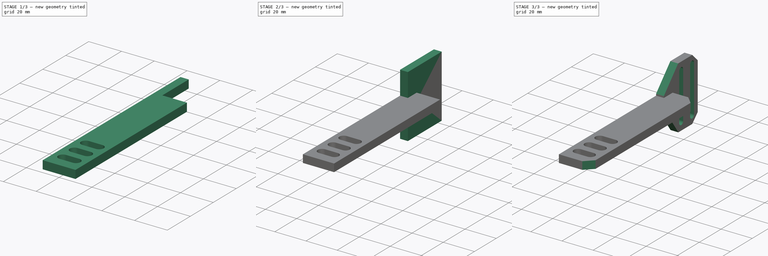
[diagram: build sequence overview — one tinted view per stage of 3, left to right]
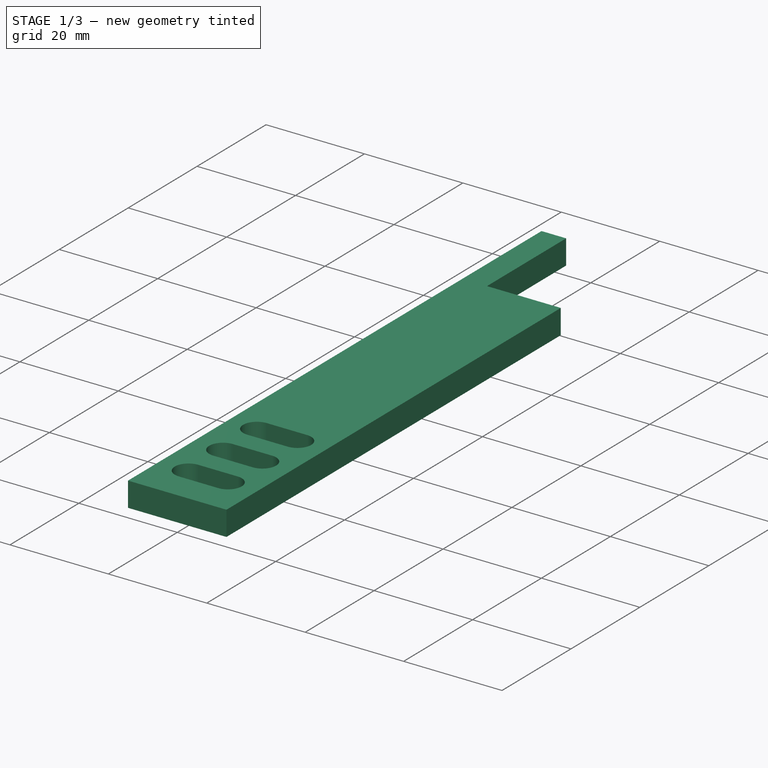
[diagram: stage 1 of 3 — iso view after this stage's code; geometry added in this stage tinted green]
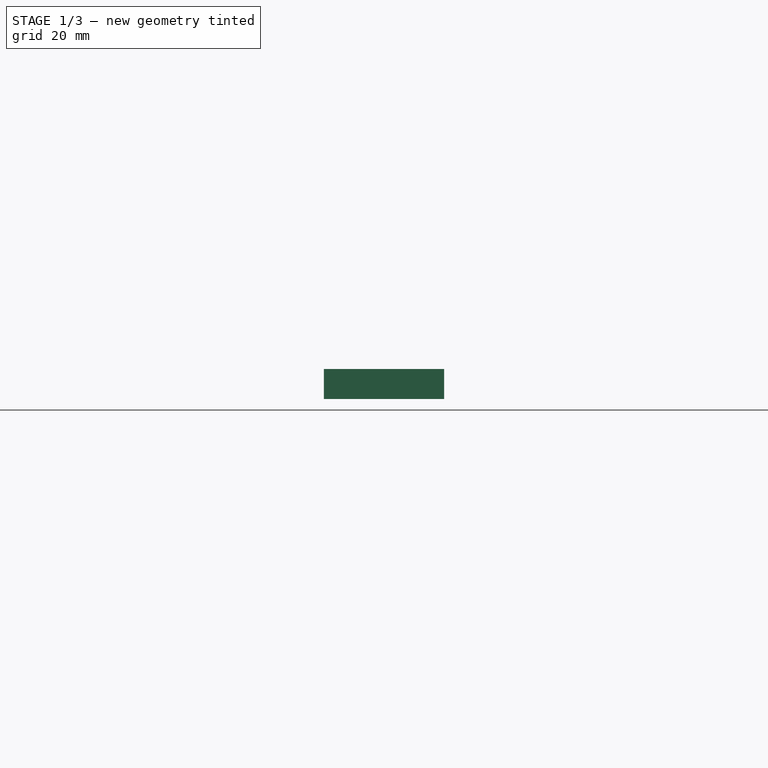
[diagram: stage 1 of 3 — front view after this stage's code; geometry added in this stage tinted green]
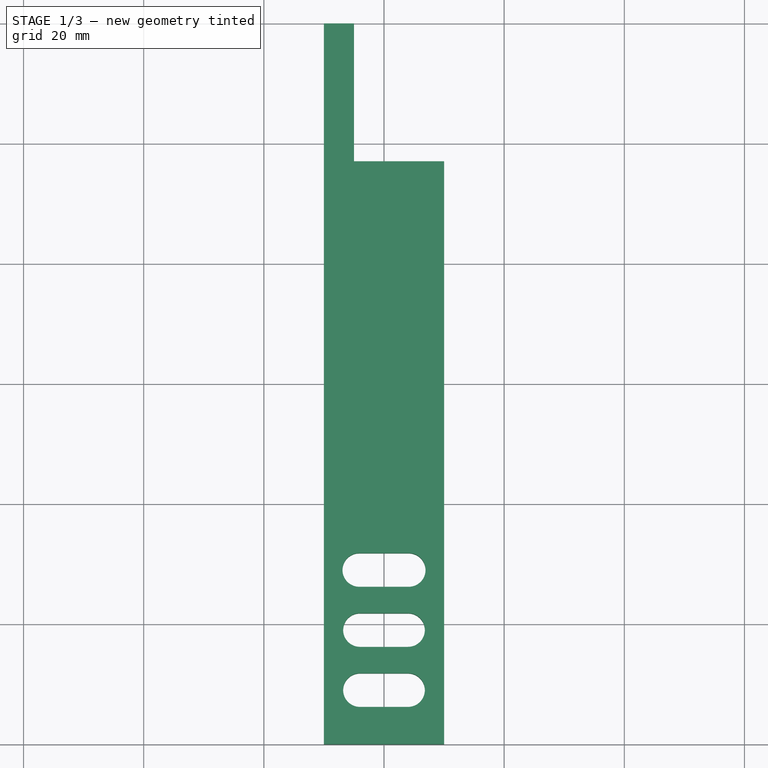
[diagram: stage 1 of 3 — top view after this stage's code; geometry added in this stage tinted green]
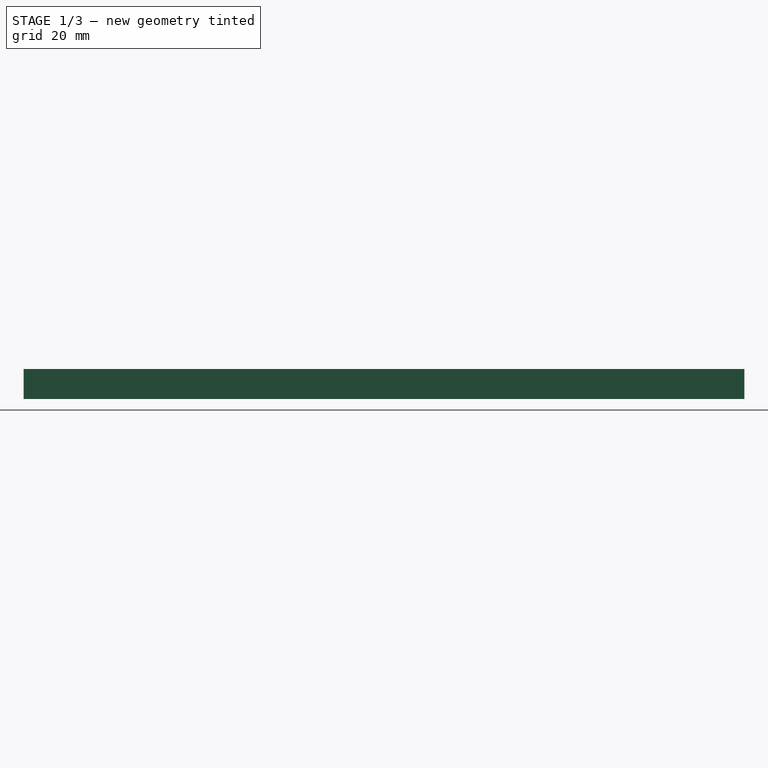
[diagram: stage 1 of 3 — right view after this stage's code; geometry added in this stage tinted green]
FCSTD DOCUMENT  (FreeCAD 0.16R6698 (Git))
Label: pnp z limit bracket
License: All rights reserved
LicenseURL: http://en.wikipedia.org/wiki/All_rights_reserved
objects: Sketcher::SketchObject×4, PartDesign::Pad×2, PartDesign::Pocket×2, PartDesign::Chamfer×1
note: 13 computed .brp shape members not serialized (recipe doc carries the construction recipe); baked Part::Feature solids carry a one-line shape summary decoded from their .brp

FEATURE [Sketcher::SketchObject] Sketch
  sketch-geometry (4):
    g0: LineSegment StartX=-10 StartY=120 StartZ=0 EndX=10 EndY=120 EndZ=0
    g1: LineSegment StartX=10 StartY=120 StartZ=0 EndX=10 EndY=0 EndZ=0
    g2: LineSegment StartX=10 StartY=0 StartZ=0 EndX=-10 EndY=0 EndZ=0
    g3: LineSegment StartX=-10 StartY=0 StartZ=0 EndX=-10 EndY=120 EndZ=0
  constraints (12):
    c: Coincident(g0,g1)
    c: Coincident(g1,g2)
    c: Coincident(g2,g3)
    c: Coincident(g3,g0)
    c: Horizontal(g0)
    c: Horizontal(g2)
    c: Vertical(g1)
    c: Vertical(g3)
    c: Symmetric(g0,g0,g-2)
    c: PointOnObject(g1,g-1)
    c: DistanceY(g1,g1) = 120
    c: DistanceX(g0,g0) = 20
FEATURE [PartDesign::Pad] Pad
  Length = 5
  Length2 = 100
  Sketch = -> Sketch
  Type = 0
FEATURE [Sketcher::SketchObject] Sketch001
  Placement = pos=(0,0,5) rot=(0,0,1;0rad)
  Support = -> Pad [Face6]
  sketch-geometry (16):
    g0: ArcOfCircle CenterX=-4 CenterY=9 CenterZ=0 NormalX=0 NormalY=0 NormalZ=1 Radius=2.8 StartAngle=1.5708 EndAngle=4.71239
    g1: ArcOfCircle CenterX=4 CenterY=9 CenterZ=0 NormalX=0 NormalY=0 NormalZ=1 Radius=2.8 StartAngle=4.71239 EndAngle=7.85398
    g2: LineSegment StartX=-4 StartY=6.2 StartZ=0 EndX=4 EndY=6.2 EndZ=0
    g3: LineSegment StartX=-4 StartY=11.8 StartZ=0 EndX=4 EndY=11.8 EndZ=0
    g4: ArcOfCircle CenterX=-4 CenterY=19 CenterZ=0 NormalX=0 NormalY=0 NormalZ=1 Radius=2.8 StartAngle=1.5708 EndAngle=4.71239
    g5: ArcOfCircle CenterX=4 CenterY=19 CenterZ=0 NormalX=0 NormalY=0 NormalZ=1 Radius=2.8 StartAngle=4.71239 EndAngle=7.85398
    g6: LineSegment StartX=-4 StartY=16.2 StartZ=0 EndX=4 EndY=16.2 EndZ=0
    g7: LineSegment StartX=-4 StartY=21.8 StartZ=0 EndX=4 EndY=21.8 EndZ=0
    g8: LineSegment StartX=-5 StartY=120.032 StartZ=0 EndX=10.636 EndY=120.032 EndZ=0
    g9: LineSegment StartX=10.636 StartY=120.032 StartZ=0 EndX=10.636 EndY=97.0322 EndZ=0
    g10: LineSegment StartX=10.636 StartY=97.0322 StartZ=0 EndX=-5 EndY=97.0322 EndZ=0
    g11: LineSegment StartX=-5 StartY=97.0322 StartZ=0 EndX=-5 EndY=120.032 EndZ=0
    g12: ArcOfCircle CenterX=-4.11305 CenterY=29 CenterZ=0 NormalX=0 NormalY=0 NormalZ=1 Radius=2.8 StartAngle=1.5708 EndAngle=4.71239
    g13: ArcOfCircle CenterX=4.11305 CenterY=29 CenterZ=0 NormalX=0 NormalY=0 NormalZ=1 Radius=2.8 StartAngle=4.71239 EndAngle=7.85398
    g14: LineSegment StartX=-4.11305 StartY=26.2 StartZ=0 EndX=4.11305 EndY=26.2 EndZ=0
    g15: LineSegment StartX=-4.11305 StartY=31.8 StartZ=0 EndX=4.11305 EndY=31.8 EndZ=0
  constraints (37):
    c: Tangent(g0,g3) = 1.5708
    c: Tangent(g0,g2) = -1.5708
    c: Tangent(g2,g1) = -1.5708
    c: Tangent(g3,g1) = 1.5708
    c: Horizontal(g2)
    c: Equal(g0,g1)
    c: Symmetric(g0,g1,g-2)
    c: Tangent(g4,g7) = 1.5708
    c: Tangent(g4,g6) = -1.5708
    c: Tangent(g6,g5) = -1.5708
    c: Tangent(g7,g5) = 1.5708
    c: Horizontal(g6)
    c: Equal(g4,g5)
    c: Symmetric(g5,g4,g-2)
    c: Radius(g0) = 2.8
    c: Equal(g0,g4)
    c: DistanceX(g4,g-1) = 4
    c: DistanceX(g0,g-1) = 4
    c: Coincident(g8,g9)
    c: Coincident(g9,g10)
    c: Coincident(g10,g11)
    c: Coincident(g11,g8)
    c: Horizontal(g8)
    c: Horizontal(g10)
    c: Vertical(g9)
    c: Vertical(g11)
    c: DistanceY(g9,g9) = 23
    c: Tangent(g12,g15) = 1.5708
    c: Tangent(g12,g14) = -1.5708
    c: Tangent(g14,g13) = -1.5708
    c: Tangent(g15,g13) = 1.5708
    c: Horizontal(g14)
    c: Equal(g12,g13)
    c: Symmetric(g13,g12,g-2)
    c: Radius(g12) = 2.8
    c: DistanceY(g4,g12) = 10
    c: DistanceY(g0,g4) = 10
FEATURE [PartDesign::Pocket] Pocket
  Length = 5
  Sketch = -> Sketch001
  Type = 1
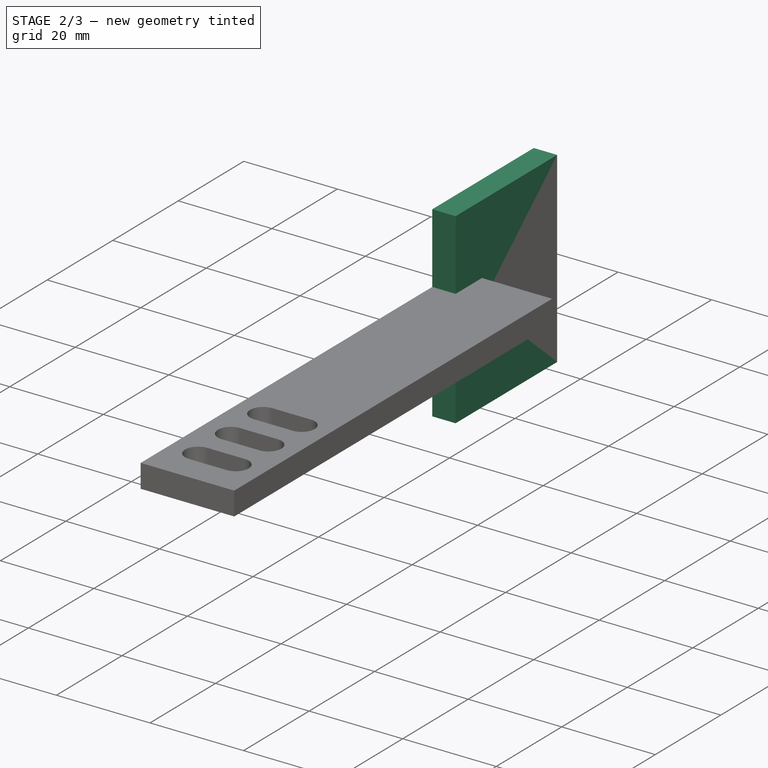
[diagram: stage 2 of 3 — iso view after this stage's code; geometry added in this stage tinted green]
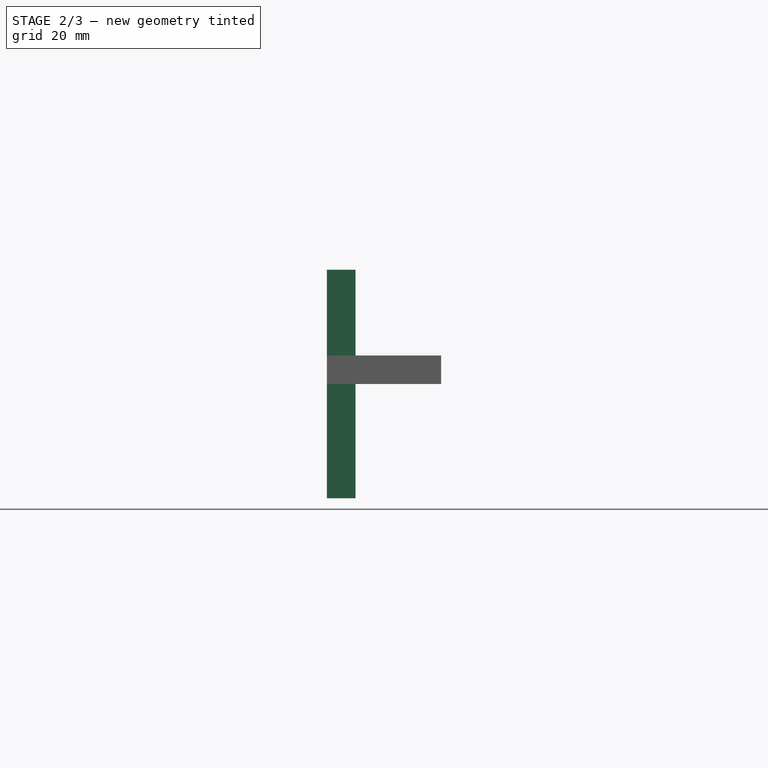
[diagram: stage 2 of 3 — front view after this stage's code; geometry added in this stage tinted green]
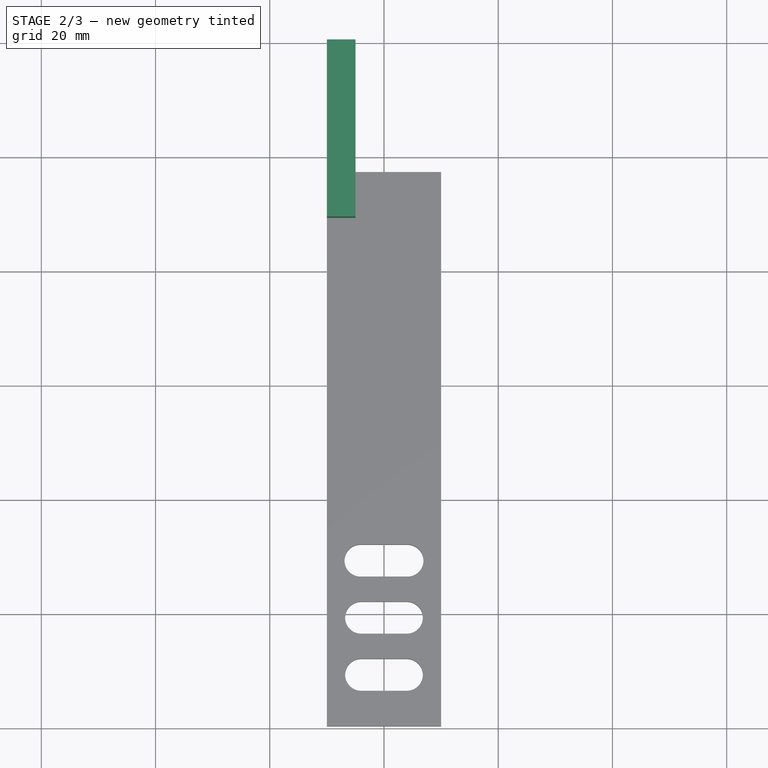
[diagram: stage 2 of 3 — top view after this stage's code; geometry added in this stage tinted green]
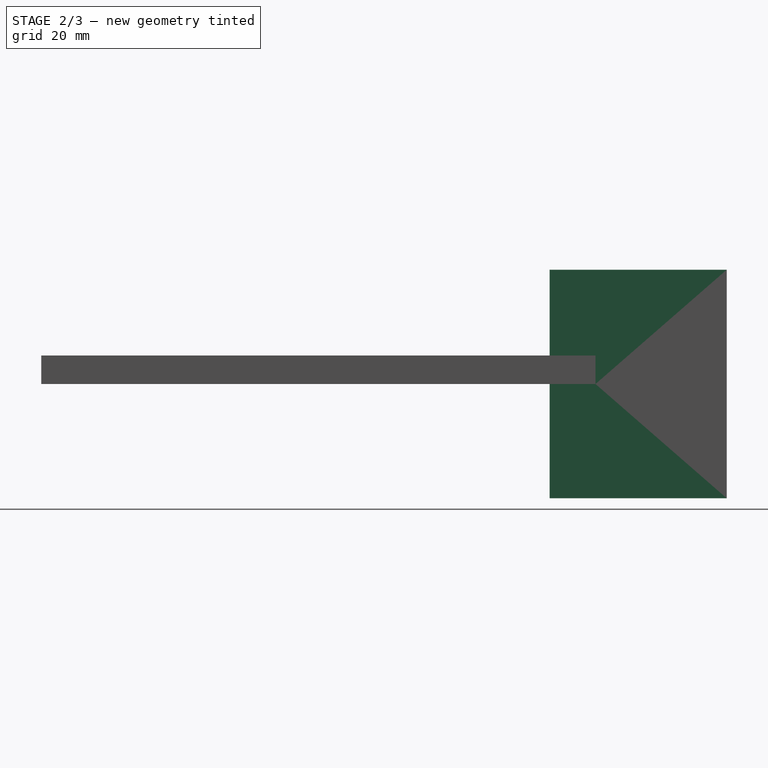
[diagram: stage 2 of 3 — right view after this stage's code; geometry added in this stage tinted green]
FEATURE [Sketcher::SketchObject] Sketch002
  Placement = pos=(0,0,5) rot=(0,0,1;0rad)
  Support = -> Pocket [Face4]
  sketch-geometry (4):
    g0: LineSegment StartX=-10 StartY=120 StartZ=0 EndX=-5 EndY=120 EndZ=0
    g1: LineSegment StartX=-5 StartY=120 StartZ=0 EndX=-5 EndY=89 EndZ=0
    g2: LineSegment StartX=-5 StartY=89 StartZ=0 EndX=-10 EndY=89 EndZ=0
    g3: LineSegment StartX=-10 StartY=89 StartZ=0 EndX=-10 EndY=120 EndZ=0
  constraints (8):
    c: Coincident(g0,g1)
    c: Coincident(g1,g2)
    c: Coincident(g2,g3)
    c: Coincident(g3,g0)
    c: Horizontal(g0)
    c: Horizontal(g2)
    c: Vertical(g1)
    c: Vertical(g3)
FEATURE [PartDesign::Pad] Pad001
  Length = 15
  Length2 = 25
  Sketch = -> Sketch002
  Type = 4
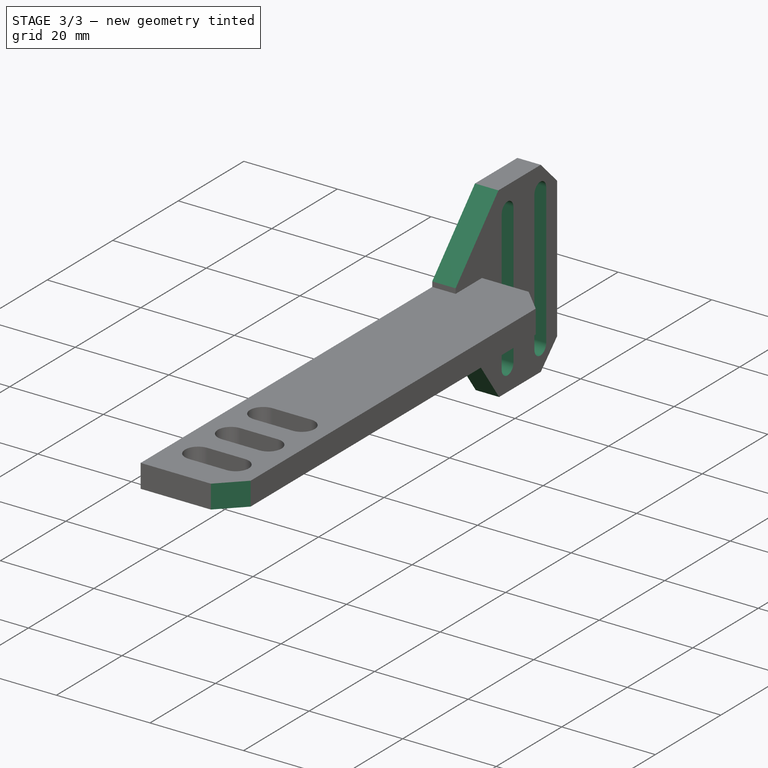
[diagram: stage 3 of 3 — iso view after this stage's code; geometry added in this stage tinted green]
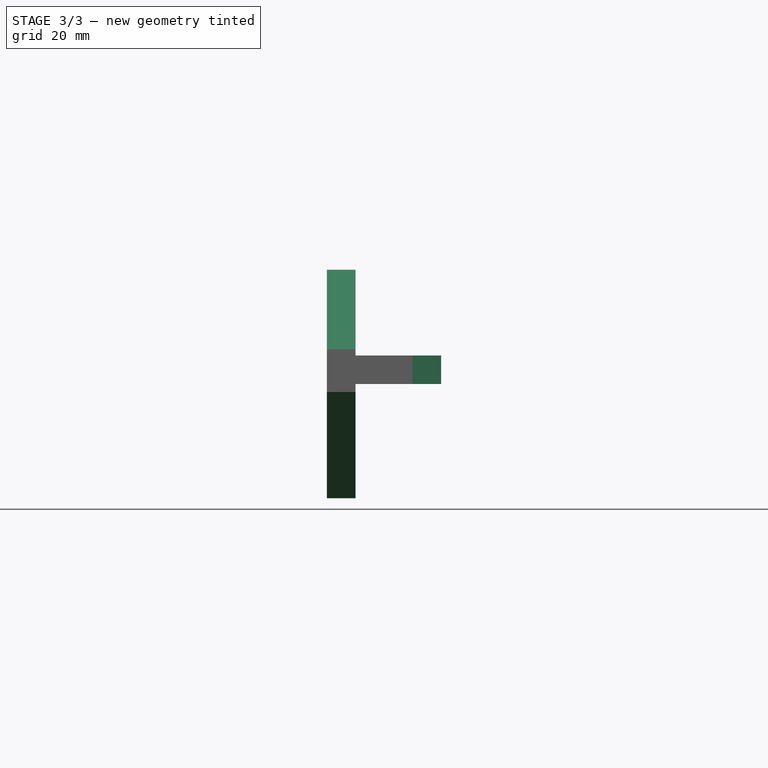
[diagram: stage 3 of 3 — front view after this stage's code; geometry added in this stage tinted green]
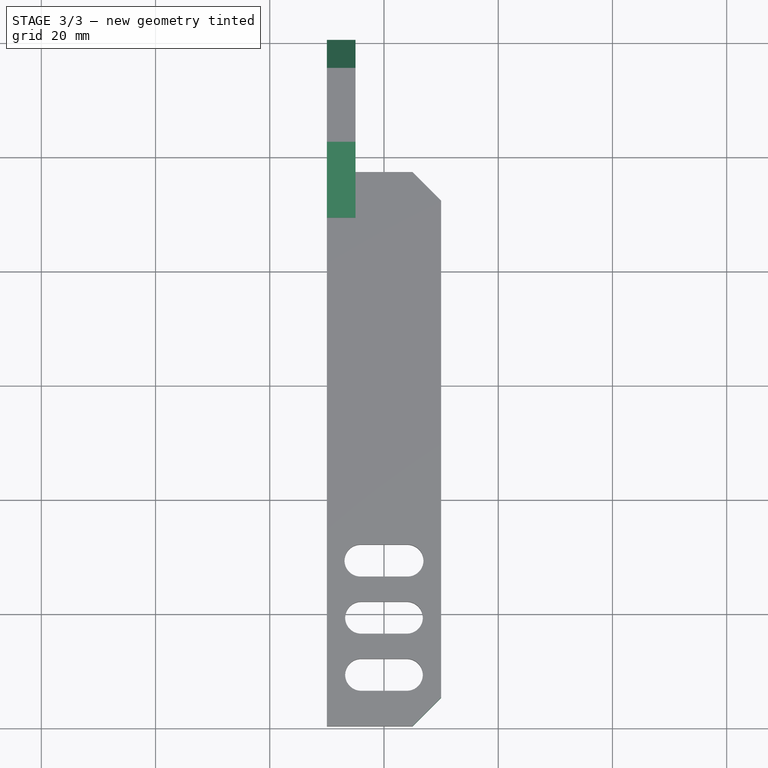
[diagram: stage 3 of 3 — top view after this stage's code; geometry added in this stage tinted green]
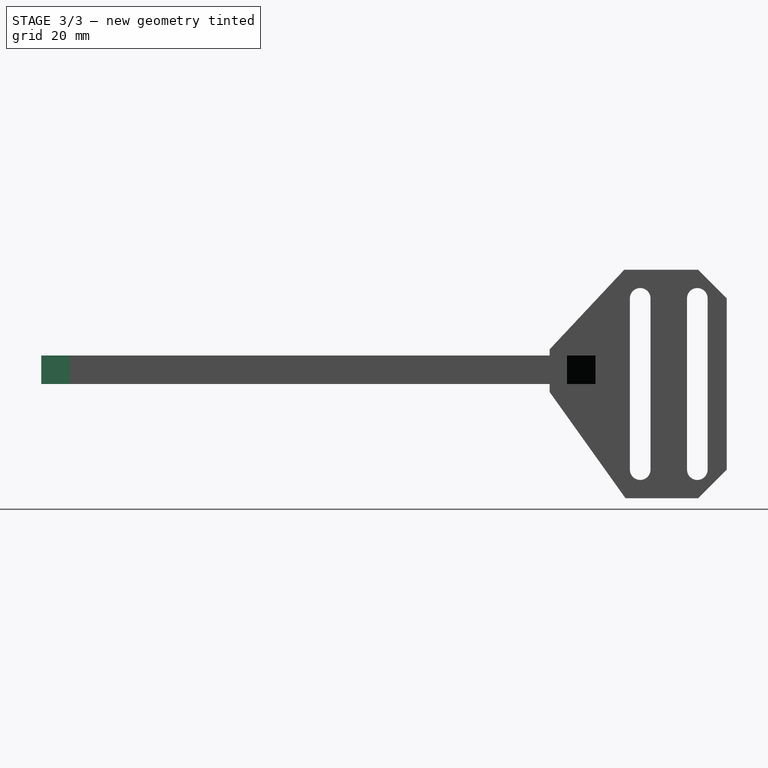
[diagram: stage 3 of 3 — right view after this stage's code; geometry added in this stage tinted green]
FEATURE [Sketcher::SketchObject] Sketch003
  Placement = pos=(-5,0,0) rot=(0.57735,0.57735,0.57735;2.0944rad)
  Support = -> Pad001 [Face18]
  sketch-geometry (14):
    g0: ArcOfCircle CenterX=114.858 CenterY=15 CenterZ=0 NormalX=0 NormalY=0 NormalZ=1 Radius=1.8 StartAngle=0 EndAngle=3.14159
    g1: ArcOfCircle CenterX=114.858 CenterY=-15 CenterZ=0 NormalX=0 NormalY=0 NormalZ=1 Radius=1.8 StartAngle=3.14159 EndAngle=6.28319
    g2: LineSegment StartX=113.058 StartY=15 StartZ=0 EndX=113.058 EndY=-15 EndZ=0
    g3: LineSegment StartX=116.658 StartY=15 StartZ=0 EndX=116.658 EndY=-15 EndZ=0
    g4: ArcOfCircle CenterX=104.858 CenterY=15 CenterZ=0 NormalX=0 NormalY=0 NormalZ=1 Radius=1.8 StartAngle=0 EndAngle=3.14159
    g5: ArcOfCircle CenterX=104.858 CenterY=-15 CenterZ=0 NormalX=0 NormalY=0 NormalZ=1 Radius=1.8 StartAngle=3.14159 EndAngle=6.28319
    g6: LineSegment StartX=103.058 StartY=15 StartZ=0 EndX=103.058 EndY=-15 EndZ=0
    g7: LineSegment StartX=106.658 StartY=15 StartZ=0 EndX=106.658 EndY=-15 EndZ=0
    g8: LineSegment StartX=88 StartY=5 StartZ=0 EndX=103 EndY=21 EndZ=0
    g9: LineSegment StartX=103 StartY=21 StartZ=0 EndX=88 EndY=21 EndZ=0
    g10: LineSegment StartX=88 StartY=21 StartZ=0 EndX=88 EndY=5 EndZ=0
    g11: LineSegment StartX=88 StartY=0 StartZ=0 EndX=103 EndY=-21 EndZ=0
    g12: LineSegment StartX=103 StartY=-21 StartZ=0 EndX=88 EndY=-21 EndZ=0
    g13: LineSegment StartX=88 StartY=-21 StartZ=0 EndX=88 EndY=0 EndZ=0
  constraints (28):
    c: Tangent(g0,g3) = 1.5708
    c: Tangent(g0,g2) = -1.5708
    c: Tangent(g2,g1) = -1.5708
    c: Tangent(g3,g1) = 1.5708
    c: Vertical(g2)
    c: Equal(g0,g1)
    c: Tangent(g4,g7) = 1.5708
    c: Tangent(g4,g6) = -1.5708
    c: Tangent(g6,g5) = -1.5708
    c: Tangent(g7,g5) = 1.5708
    c: Vertical(g6)
    c: Equal(g4,g5)
    c: Symmetric(g4,g5,g-1)
    c: Symmetric(g0,g1,g-1)
    c: DistanceX(g4,g0) = 10
    c: Radius(g4) = 1.8
    c: Equal(g4,g0)
    c: DistanceY(g-1,g0) = 15
    c: DistanceY(g-1,g4) = 15
    c: Coincident(g8,g9)
    c: Horizontal(g9)
    c: Coincident(g9,g10)
    c: Coincident(g10,g8)
    c: Coincident(g11,g12)
    c: Horizontal(g12)
    c: Coincident(g12,g13)
    c: Coincident(g13,g11)
    c: Vertical(g13)
FEATURE [PartDesign::Pocket] Pocket001
  Length = 5
  Sketch = -> Sketch003
  Type = 0
FEATURE [PartDesign::Chamfer] Chamfer
  Base = -> Pocket001 [Edge2,Edge4,Edge91,Edge90]
  Size = 5
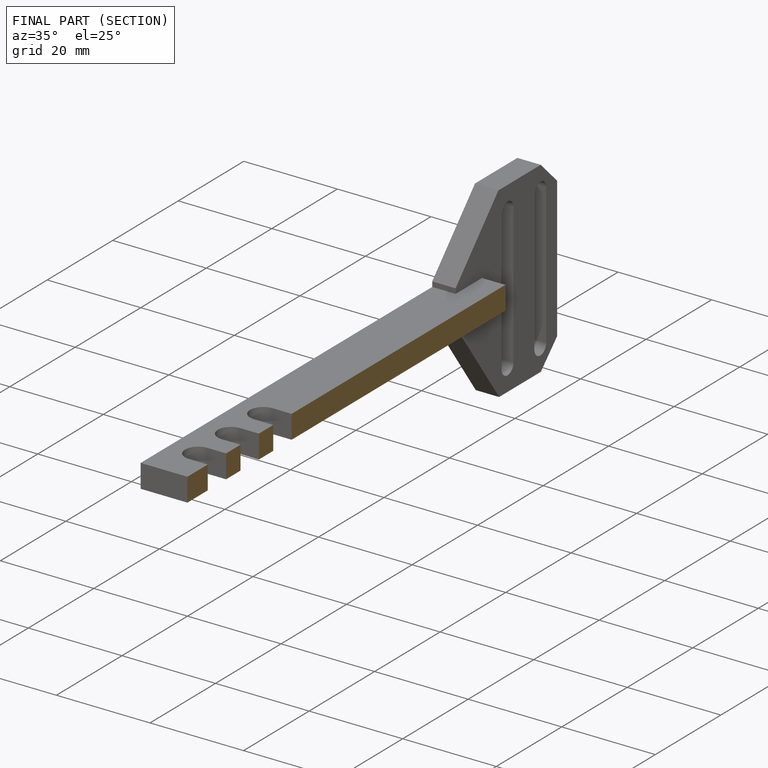
[diagram: finished part — half-section view (interior)]
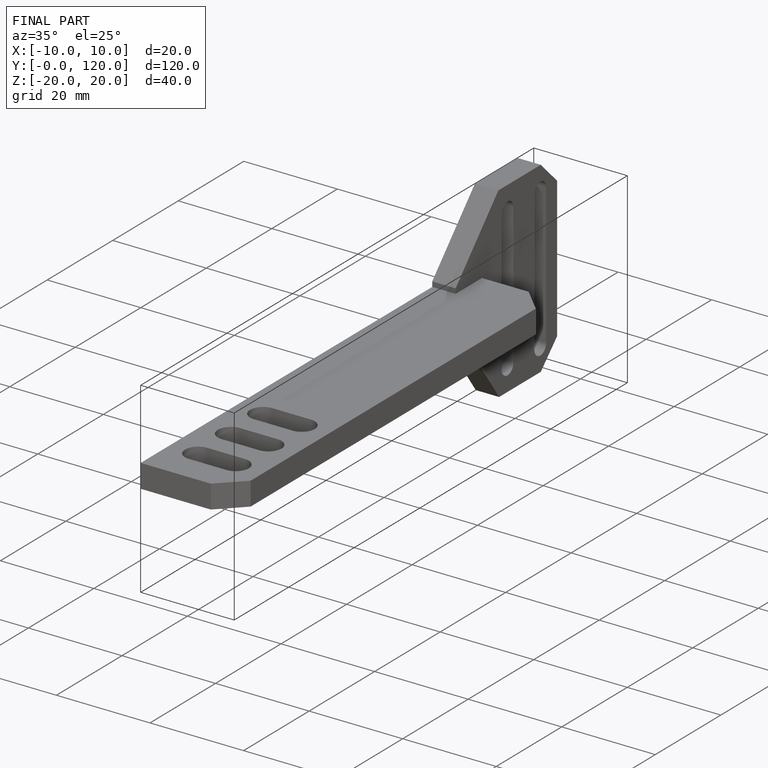
[diagram: finished part — iso view with bounding-box wireframe]
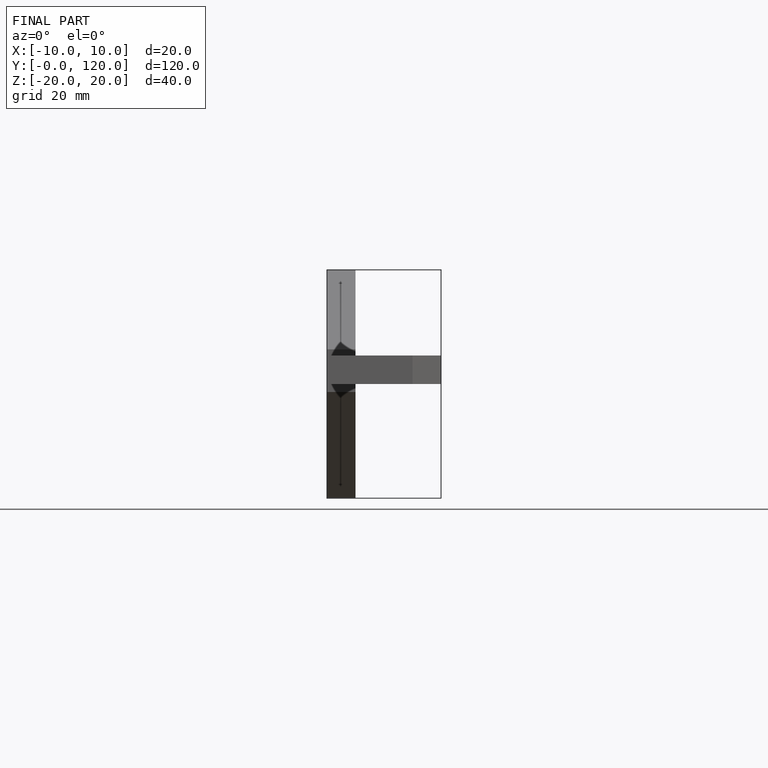
[diagram: finished part — front view with bounding-box wireframe]
